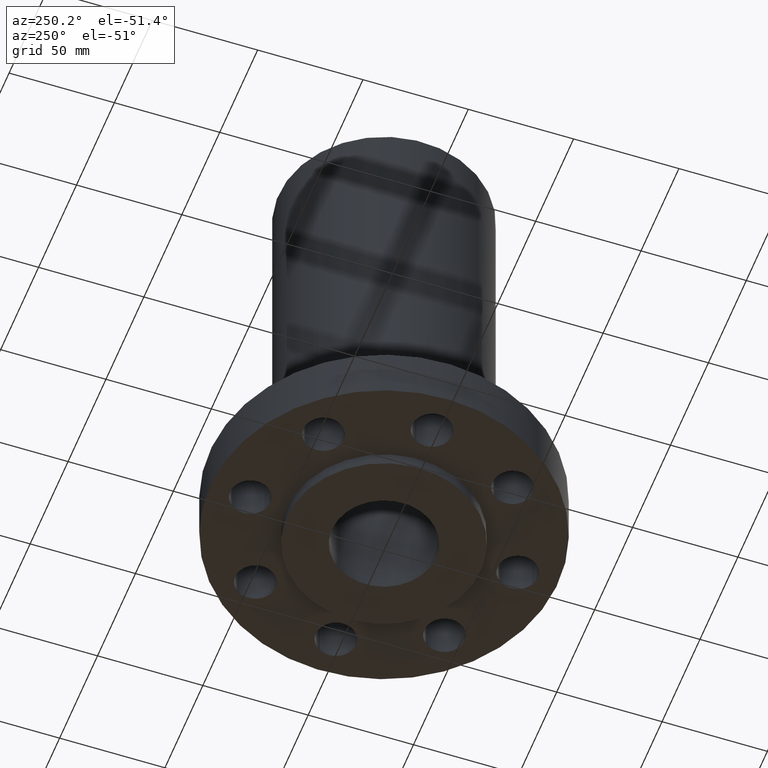
[diagram: clean part render]
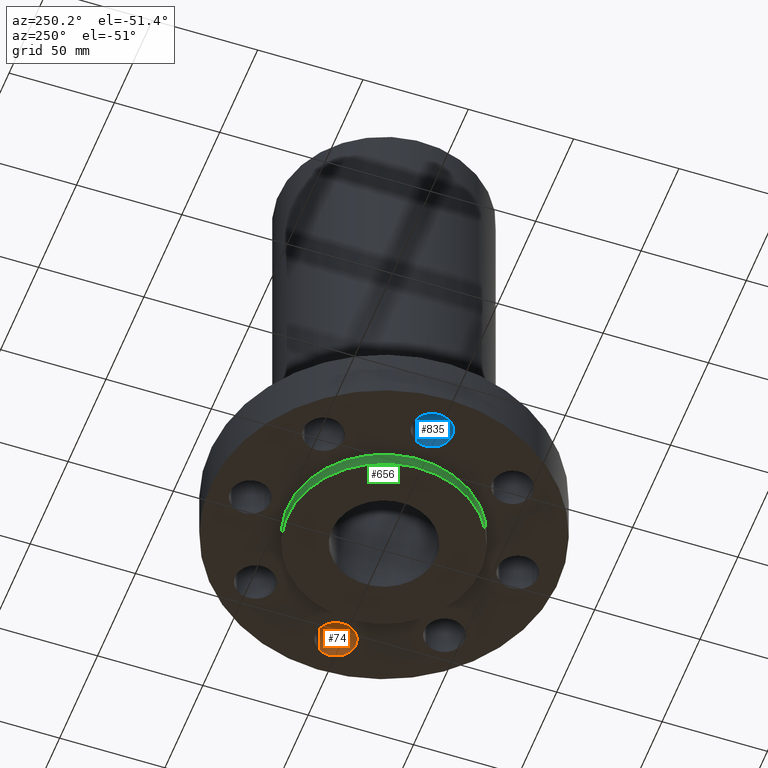
[diagram: same view with three faces highlighted in distinct colors, each labeled with its STEP entity id]
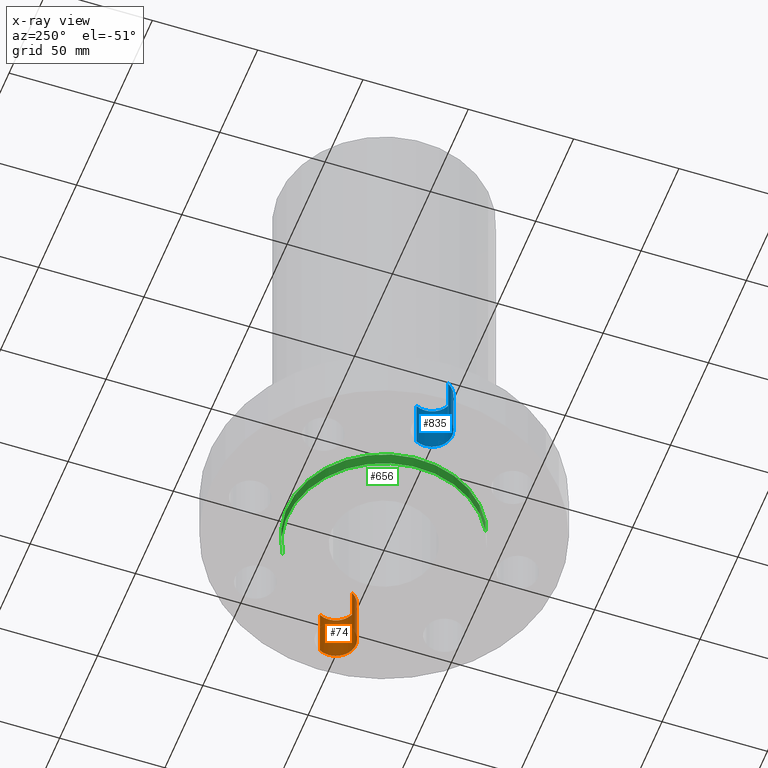
[diagram: x-ray of the same camera — body ghosted, the three highlighted faces saturated]
A machine part, auxiliary view with three faces highlighted in distinct colors.
The next image is the same camera in x-ray (body ghosted, the three faces saturated) — at least one of them is partly hidden behind the body in this view.
Their STEP definitions:

[orange] entity #74 — the highlighted cylindrical surface (edge-blend (fillet) strip) has radius 9.525 mm, axis along (0, -0, 1).
#38=AXIS2_PLACEMENT_3D('Cylinder Axis2P3D',#35,#36,#37) ;
#51=AXIS2_PLACEMENT_3D('Circle Axis2P3D',#49,#50,$) ;
#65=AXIS2_PLACEMENT_3D('Circle Axis2P3D',#63,#64,$) ;
#35=CARTESIAN_POINT('Axis2P3D Location',(2.50000000001,0.,0.00393700787402)) ;
#40=CARTESIAN_POINT('Line Origine',(2.1709065393,-0.179784576977,0.500000000002)) ;
#44=CARTESIAN_POINT('Vertex',(2.1709065393,-0.179784576977,1.)) ;
#46=CARTESIAN_POINT('Vertex',(2.1709065393,-0.179784576977,2.2401153548E-016)) ;
#49=CARTESIAN_POINT('Axis2P3D Location',(2.50000000001,0.,1.)) ;
#53=CARTESIAN_POINT('Vertex',(2.82909346072,0.179784576977,1.)) ;
#56=CARTESIAN_POINT('Line Origine',(2.82909346072,0.179784576977,0.500000000002)) ;
#60=CARTESIAN_POINT('Vertex',(2.82909346072,0.179784576977,2.2401153548E-016)) ;
#63=CARTESIAN_POINT('Axis2P3D Location',(2.50000000001,0.,0.)) ;
#36=DIRECTION('Axis2P3D Direction',(0.,-0.,0.0393700787402)) ;
#37=DIRECTION('Axis2P3D XDirection',(0.0345504945626,0.0188750212049,0.)) ;
#41=DIRECTION('Vector Direction',(0.,0.,0.0393700787402)) ;
#50=DIRECTION('Axis2P3D Direction',(0.,-0.,0.0393700787402)) ;
#57=DIRECTION('Vector Direction',(0.,0.,0.0393700787402)) ;
#64=DIRECTION('Axis2P3D Direction',(0.,-0.,0.0393700787402)) ;
#42=VECTOR('Line Direction',#41,0.0393700787402) ;
#58=VECTOR('Line Direction',#57,0.0393700787402) ;
#69=ORIENTED_EDGE('',*,*,#48,.F.) ;
#70=ORIENTED_EDGE('',*,*,#55,.F.) ;
#71=ORIENTED_EDGE('',*,*,#62,.T.) ;
#72=ORIENTED_EDGE('',*,*,#67,.T.) ;
#74=ADVANCED_FACE('PartBody',(#73),#39,.F.) ;
#52=CIRCLE('generated circle',#51,0.375000000002) ;
#66=CIRCLE('generated circle',#65,0.375000000002) ;
#39=CYLINDRICAL_SURFACE('generated cylinder',#38,0.375000000002) ;
#48=EDGE_CURVE('',#45,#47,#43,.F.) ;
#55=EDGE_CURVE('',#54,#45,#52,.F.) ;
#62=EDGE_CURVE('',#54,#61,#59,.F.) ;
#67=EDGE_CURVE('',#61,#47,#66,.F.) ;
#68=EDGE_LOOP('',(#69,#70,#71,#72)) ;
#73=FACE_OUTER_BOUND('',#68,.T.) ;
#43=LINE('Line',#40,#42) ;
#59=LINE('Line',#56,#58) ;
#45=VERTEX_POINT('',#44) ;
#47=VERTEX_POINT('',#46) ;
#54=VERTEX_POINT('',#53) ;
#61=VERTEX_POINT('',#60) ;

[blue] entity #835 — the highlighted cylindrical surface (edge-blend (fillet) strip) has radius 9.525 mm, axis along (0, 0, 1).
#190=AXIS2_PLACEMENT_3D('Circle Axis2P3D',#188,#189,$) ;
#796=AXIS2_PLACEMENT_3D('Cylinder Axis2P3D',#793,#794,#795) ;
#826=AXIS2_PLACEMENT_3D('Circle Axis2P3D',#824,#825,$) ;
#183=CARTESIAN_POINT('Vertex',(-2.82909346072,-0.179784576977,0.)) ;
#185=CARTESIAN_POINT('Vertex',(-2.1709065393,0.179784576977,0.)) ;
#188=CARTESIAN_POINT('Axis2P3D Location',(-2.50000000001,0.,0.)) ;
#793=CARTESIAN_POINT('Axis2P3D Location',(-2.50000000001,-3.06161699788E-016,0.00393700787402)) ;
#798=CARTESIAN_POINT('Line Origine',(-2.1709065393,0.179784576977,0.500000000002)) ;
#802=CARTESIAN_POINT('Vertex',(-2.1709065393,0.179784576977,1.)) ;
#809=CARTESIAN_POINT('Vertex',(-2.82909346072,-0.179784576977,1.)) ;
#812=CARTESIAN_POINT('Line Origine',(-2.82909346072,-0.179784576977,0.500000000002)) ;
#824=CARTESIAN_POINT('Axis2P3D Location',(-2.50000000001,-3.06161699788E-016,1.)) ;
#189=DIRECTION('Axis2P3D Direction',(0.,0.,-0.0393700787402)) ;
#794=DIRECTION('Axis2P3D Direction',(0.,0.,0.0393700787402)) ;
#795=DIRECTION('Axis2P3D XDirection',(-0.0345504945626,-0.0188750212049,0.)) ;
#799=DIRECTION('Vector Direction',(0.,0.,0.0393700787402)) ;
#813=DIRECTION('Vector Direction',(0.,0.,0.0393700787402)) ;
#825=DIRECTION('Axis2P3D Direction',(0.,0.,0.0393700787402)) ;
#800=VECTOR('Line Direction',#799,0.0393700787402) ;
#814=VECTOR('Line Direction',#813,0.0393700787402) ;
#830=ORIENTED_EDGE('',*,*,#816,.F.) ;
#831=ORIENTED_EDGE('',*,*,#828,.F.) ;
#832=ORIENTED_EDGE('',*,*,#804,.T.) ;
#833=ORIENTED_EDGE('',*,*,#192,.T.) ;
#835=ADVANCED_FACE('PartBody',(#834),#797,.F.) ;
#191=CIRCLE('generated circle',#190,0.375000000001) ;
#827=CIRCLE('generated circle',#826,0.375000000001) ;
#797=CYLINDRICAL_SURFACE('generated cylinder',#796,0.375000000001) ;
#192=EDGE_CURVE('',#186,#184,#191,.T.) ;
#804=EDGE_CURVE('',#803,#186,#801,.F.) ;
#816=EDGE_CURVE('',#810,#184,#815,.F.) ;
#828=EDGE_CURVE('',#803,#810,#827,.F.) ;
#829=EDGE_LOOP('',(#830,#831,#832,#833)) ;
#834=FACE_OUTER_BOUND('',#829,.T.) ;
#801=LINE('Line',#798,#800) ;
#815=LINE('Line',#812,#814) ;
#184=VERTEX_POINT('',#183) ;
#186=VERTEX_POINT('',#185) ;
#803=VERTEX_POINT('',#802) ;
#810=VERTEX_POINT('',#809) ;

[green] entity #656 — the highlighted cylindrical surface (partial cylindrical patch) has radius 45.974 mm, axis along (0, 0, -1).
#118=AXIS2_PLACEMENT_3D('Circle Axis2P3D',#116,#117,$) ;
#614=AXIS2_PLACEMENT_3D('Circle Axis2P3D',#612,#613,$) ;
#638=AXIS2_PLACEMENT_3D('Cylinder Axis2P3D',#635,#636,#637) ;
#111=CARTESIAN_POINT('Vertex',(0.867760224877,1.58842443703,0.)) ;
#113=CARTESIAN_POINT('Vertex',(-0.867760224877,-1.58842443703,0.)) ;
#116=CARTESIAN_POINT('Axis2P3D Location',(0.,0.,0.)) ;
#612=CARTESIAN_POINT('Axis2P3D Location',(0.,0.,-0.250000000001)) ;
#616=CARTESIAN_POINT('Vertex',(-0.867760224877,-1.58842443703,-0.250000000001)) ;
#618=CARTESIAN_POINT('Vertex',(0.867760224877,1.58842443703,-0.250000000001)) ;
#635=CARTESIAN_POINT('Axis2P3D Location',(0.,0.,4.25000000002)) ;
#640=CARTESIAN_POINT('Line Origine',(-0.867760224877,-1.58842443703,-0.125000000001)) ;
#645=CARTESIAN_POINT('Line Origine',(0.867760224877,1.58842443703,-0.125000000001)) ;
#117=DIRECTION('Axis2P3D Direction',(0.,0.,-0.0393700787402)) ;
#613=DIRECTION('Axis2P3D Direction',(0.,0.,-0.0393700787402)) ;
#636=DIRECTION('Axis2P3D Direction',(0.,0.,-0.0393700787402)) ;
#637=DIRECTION('Axis2P3D XDirection',(0.0188750212049,0.0345504945626,0.)) ;
#641=DIRECTION('Vector Direction',(0.,0.,-0.0393700787402)) ;
#646=DIRECTION('Vector Direction',(0.,0.,-0.0393700787402)) ;
#642=VECTOR('Line Direction',#641,0.0393700787402) ;
#647=VECTOR('Line Direction',#646,0.0393700787402) ;
#651=ORIENTED_EDGE('',*,*,#620,.F.) ;
#652=ORIENTED_EDGE('',*,*,#644,.T.) ;
#653=ORIENTED_EDGE('',*,*,#120,.T.) ;
#654=ORIENTED_EDGE('',*,*,#649,.F.) ;
#656=ADVANCED_FACE('PartBody',(#655),#639,.T.) ;
#119=CIRCLE('generated circle',#118,1.81000000001) ;
#615=CIRCLE('generated circle',#614,1.81000000001) ;
#639=CYLINDRICAL_SURFACE('generated cylinder',#638,1.81000000001) ;
#120=EDGE_CURVE('',#114,#112,#119,.T.) ;
#620=EDGE_CURVE('',#617,#619,#615,.T.) ;
#644=EDGE_CURVE('',#617,#114,#643,.F.) ;
#649=EDGE_CURVE('',#619,#112,#648,.F.) ;
#650=EDGE_LOOP('',(#651,#652,#653,#654)) ;
#655=FACE_OUTER_BOUND('',#650,.T.) ;
#643=LINE('Line',#640,#642) ;
#648=LINE('Line',#645,#647) ;
#112=VERTEX_POINT('',#111) ;
#114=VERTEX_POINT('',#113) ;
#617=VERTEX_POINT('',#616) ;
#619=VERTEX_POINT('',#618) ;